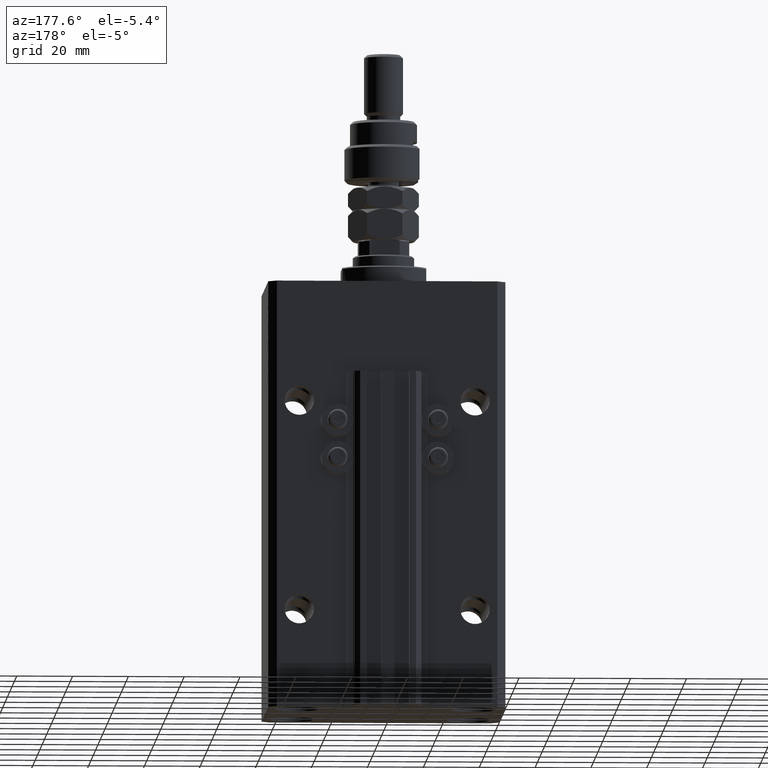
[diagram: clean part render]
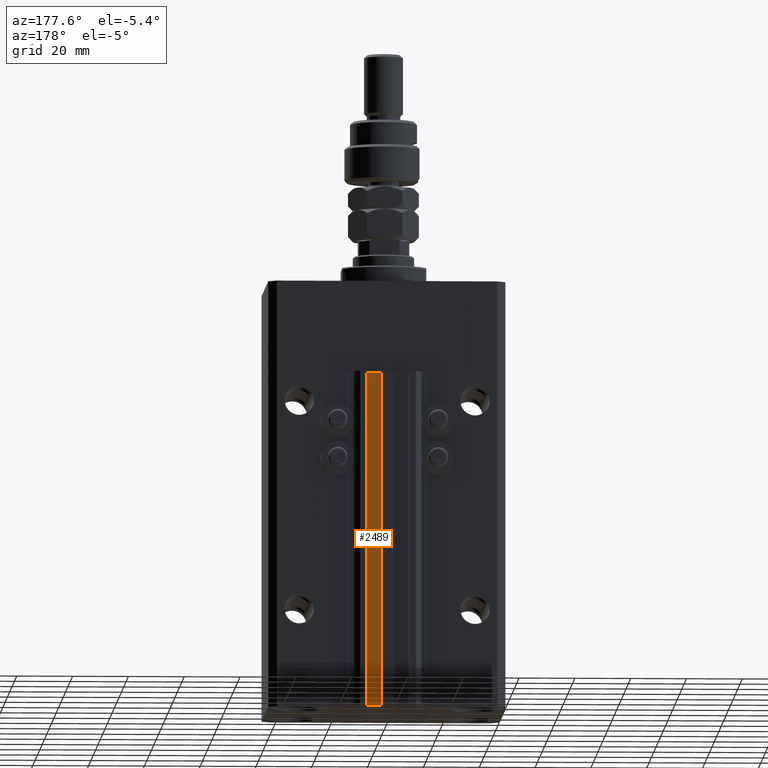
[diagram: same view with one face highlighted and labeled with its STEP entity id]
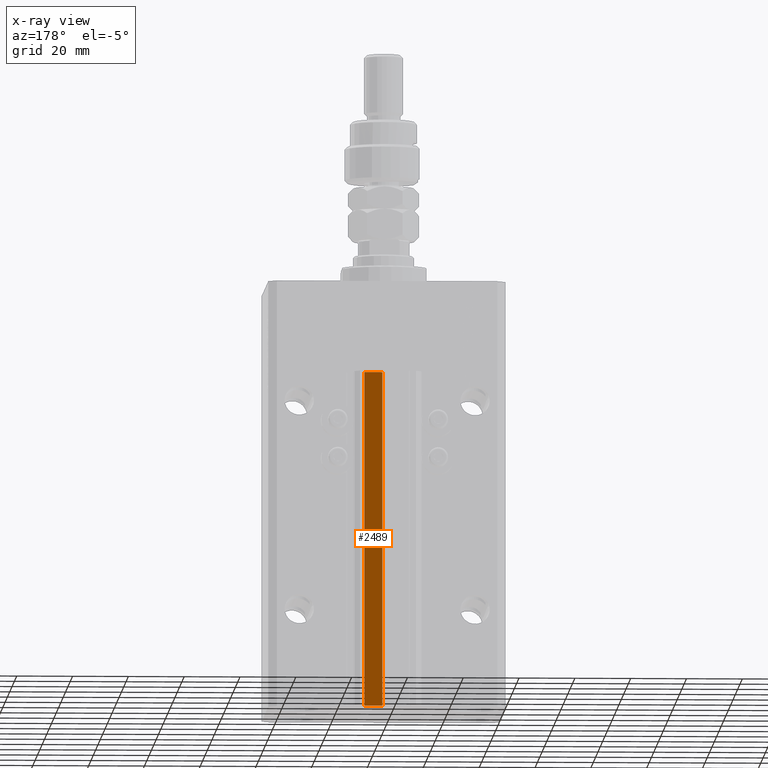
[diagram: x-ray of the same camera — body ghosted, the highlighted face saturated]
A machine part, auxiliary view. The second image highlights one B-rep face of the part: STEP entity #2489.
The next image is the same camera in x-ray: the body ghosted, the highlighted face saturated — about 0% of this face is hidden behind the body in this view.
In plain terms, the highlighted planar face has unit normal (0, 1, 0).
Its self-contained STEP definition (entity closure, byte-faithful):
#545 = EDGE_CURVE ( 'NONE', #44129, #18232, #21774, .T. ) ;
#1346 = CARTESIAN_POINT ( 'NONE',  ( 8.199999999999999289, 33.50000000000000000, -153.0000000000000000 ) ) ;
#2095 = DIRECTION ( 'NONE',  ( -1.000000000000000000, 0.000000000000000000, 0.000000000000000000 ) ) ;
#2489 = ADVANCED_FACE ( 'NONE', ( #39221 ), #35376, .T. ) ;
#4058 = VECTOR ( 'NONE', #2095, 1000.000000000000000 ) ;
#4461 = CARTESIAN_POINT ( 'NONE',  ( 1.800000000000000933, 33.50000000000000000, -33.00000000000000000 ) ) ;
#5720 = CARTESIAN_POINT ( 'NONE',  ( 8.199999999999999289, 33.50000000000000000, -33.00000000000000000 ) ) ;
#6197 = DIRECTION ( 'NONE',  ( 0.000000000000000000, 0.000000000000000000, 1.000000000000000000 ) ) ;
#8736 = VERTEX_POINT ( 'NONE', #4461 ) ;
#10174 = CARTESIAN_POINT ( 'NONE',  ( 8.199999999999999289, 33.50000000000000000, -153.0000000000000000 ) ) ;
#11605 = ORIENTED_EDGE ( 'NONE', *, *, #42812, .T. ) ;
#12927 = DIRECTION ( 'NONE',  ( -1.000000000000000000, 0.000000000000000000, 0.000000000000000000 ) ) ;
#13989 = ORIENTED_EDGE ( 'NONE', *, *, #43611, .F. ) ;
#14671 = CARTESIAN_POINT ( 'NONE',  ( 1.800000000000000933, 33.50000000000000000, -153.0000000000000000 ) ) ;
#15264 = DIRECTION ( 'NONE',  ( 0.000000000000000000, 1.000000000000000000, -0.000000000000000000 ) ) ;
#15519 = DIRECTION ( 'NONE',  ( 0.000000000000000000, 0.000000000000000000, 1.000000000000000000 ) ) ;
#18232 = VERTEX_POINT ( 'NONE', #5720 ) ;
#18342 = ORIENTED_EDGE ( 'NONE', *, *, #545, .F. ) ;
#18526 = LINE ( 'NONE', #14671, #37156 ) ;
#19639 = VECTOR ( 'NONE', #12927, 1000.000000000000000 ) ;
#20285 = VERTEX_POINT ( 'NONE', #37354 ) ;
#21774 = LINE ( 'NONE', #10174, #45610 ) ;
#22211 = EDGE_LOOP ( 'NONE', ( #13989, #18342, #11605, #24539 ) ) ;
#24375 = EDGE_CURVE ( 'NONE', #20285, #8736, #18526, .T. ) ;
#24539 = ORIENTED_EDGE ( 'NONE', *, *, #24375, .T. ) ;
#24688 = CARTESIAN_POINT ( 'NONE',  ( 8.199999999999999289, 33.50000000000000000, -153.0000000000000000 ) ) ;
#28637 = CARTESIAN_POINT ( 'NONE',  ( 8.199999999999999289, 33.50000000000000000, -33.00000000000000000 ) ) ;
#29401 = LINE ( 'NONE', #28637, #4058 ) ;
#35376 = PLANE ( 'NONE',  #47339 ) ;
#37156 = VECTOR ( 'NONE', #6197, 1000.000000000000000 ) ;
#37354 = CARTESIAN_POINT ( 'NONE',  ( 1.800000000000000933, 33.50000000000000000, -153.0000000000000000 ) ) ;
#38726 = CARTESIAN_POINT ( 'NONE',  ( 8.199999999999999289, 33.50000000000000000, -153.0000000000000000 ) ) ;
#39221 = FACE_OUTER_BOUND ( 'NONE', #22211, .T. ) ;
#41340 = DIRECTION ( 'NONE',  ( 0.000000000000000000, 0.000000000000000000, 1.000000000000000000 ) ) ;
#42812 = EDGE_CURVE ( 'NONE', #44129, #20285, #44613, .T. ) ;
#43611 = EDGE_CURVE ( 'NONE', #18232, #8736, #29401, .T. ) ;
#44129 = VERTEX_POINT ( 'NONE', #24688 ) ;
#44613 = LINE ( 'NONE', #1346, #19639 ) ;
#45610 = VECTOR ( 'NONE', #41340, 1000.000000000000000 ) ;
#47339 = AXIS2_PLACEMENT_3D ( 'NONE', #38726, #15264, #15519 ) ;